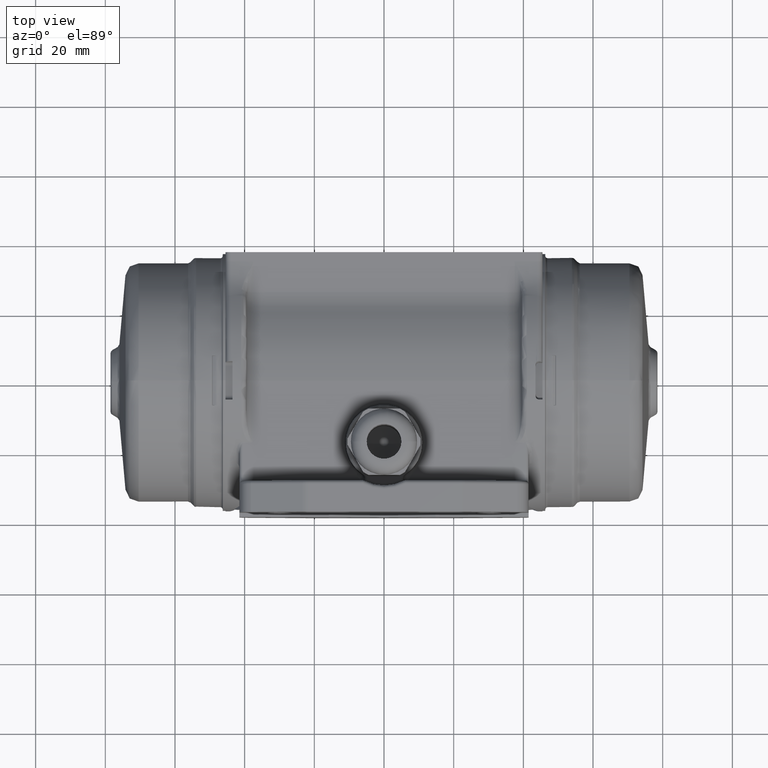
[diagram: clean part render]
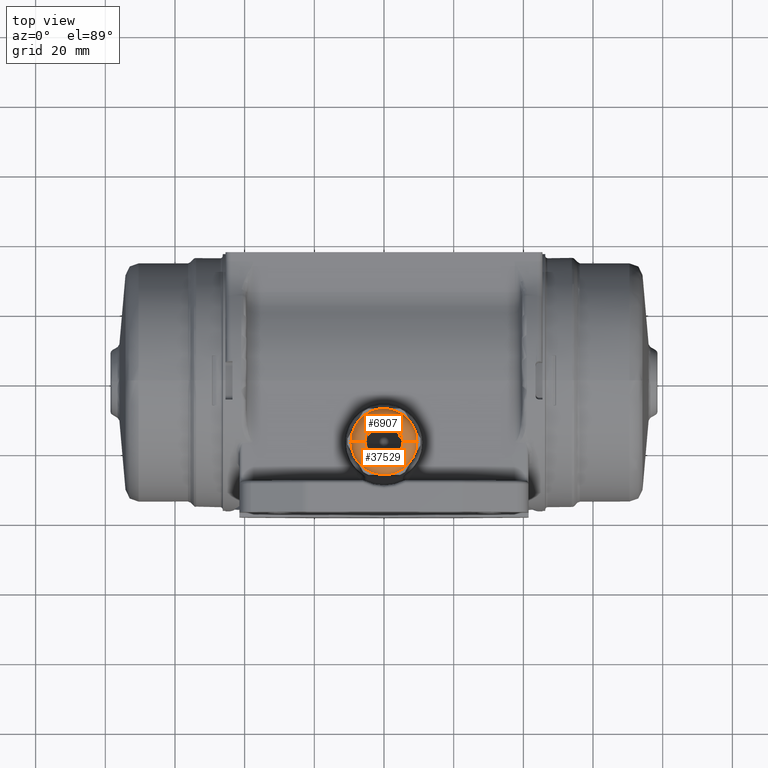
[diagram: same view with one multi-face feature highlighted, each face labeled with its STEP entity id]
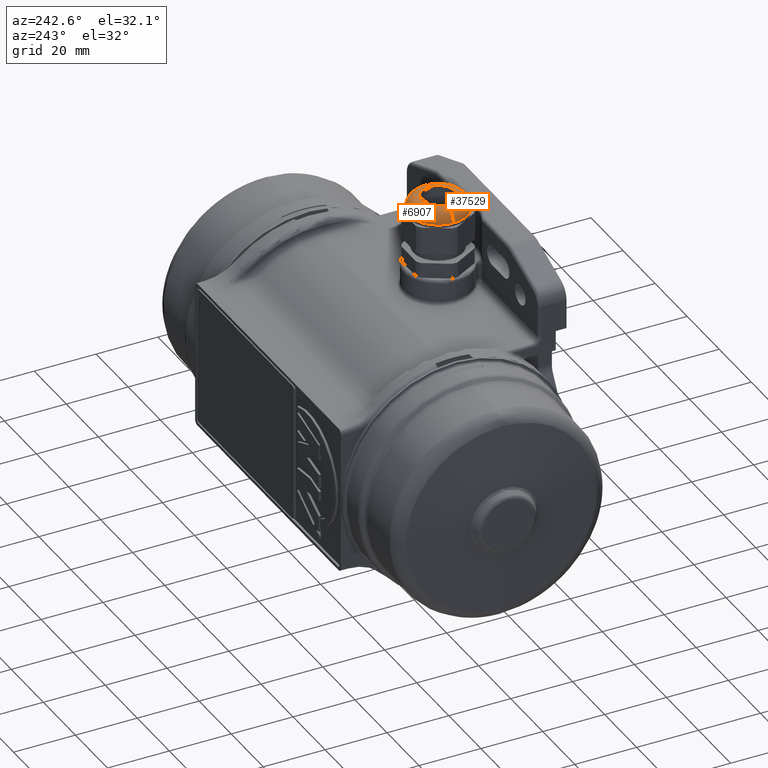
[diagram: same view with one multi-face feature highlighted, each face labeled with its STEP entity id]
A machine part, top view. The highlighted faces form ONE feature: a constant-radius fillet chain: 2 tangent blend faces with common blend radius 4 mm. The faces share edges in the B-rep.
A second angle (auxiliary view) of the same feature is appended — it is thin or edge-on in the first view.
Their STEP definitions:
[1] entity #6907 (Torus):
#6871 = VERTEX_POINT ( 'NONE', #28073 ) ;
#6880 = ORIENTED_EDGE ( 'NONE', *, *, #6901, .F. ) ;
#6884 = EDGE_LOOP ( 'NONE', ( #6893, #6897, #6880, #6918 ) ) ;
#6887 = VERTEX_POINT ( 'NONE', #28171 ) ;
#6891 = EDGE_CURVE ( 'NONE', #6887, #6919, #28269, .T. ) ;
#6893 = ORIENTED_EDGE ( 'NONE', *, *, #6913, .F. ) ;
#6897 = ORIENTED_EDGE ( 'NONE', *, *, #6891, .T. ) ;
#6901 = EDGE_CURVE ( 'NONE', #6871, #6919, #28332, .T. ) ;
#6907 = ADVANCED_FACE ( 'NONE', ( #28303 ), #28363, .T. ) ;
#6908 = VERTEX_POINT ( 'NONE', #28362 ) ;
#6913 = EDGE_CURVE ( 'NONE', #6887, #6908, #28347, .T. ) ;
#6917 = EDGE_CURVE ( 'NONE', #6908, #6871, #28353, .T. ) ;
#6918 = ORIENTED_EDGE ( 'NONE', *, *, #6917, .F. ) ;
#6919 = VERTEX_POINT ( 'NONE', #28394 ) ;
#28073 = CARTESIAN_POINT ( 'NONE',  ( 5.500000000000000000, -18.00000000000000000, 62.50000000000000000 ) ) ;
#28171 = CARTESIAN_POINT ( 'NONE',  ( -9.500000000000000000, -18.00000000000000000, 58.50000000000000000 ) ) ;
#28262 = DIRECTION ( 'NONE',  ( -1.000000000000000000, 0.0000000000000000000, 0.0000000000000000000 ) ) ;
#28264 = DIRECTION ( 'NONE',  ( 1.224646799147353200E-016, 1.000000000000000000, -0.0000000000000000000 ) ) ;
#28266 = CARTESIAN_POINT ( 'NONE',  ( -5.500000000000000000, -18.00000000000000000, 58.50000000000000000 ) ) ;
#28267 = AXIS2_PLACEMENT_3D ( 'NONE', #28266, #28264, #28262 ) ;
#28269 = CIRCLE ( 'NONE', #28267, 4.000000000000000000 ) ;
#28303 = FACE_OUTER_BOUND ( 'NONE', #6884, .T. ) ;
#28310 = DIRECTION ( 'NONE',  ( 1.000000000000000000, 0.0000000000000000000, 0.0000000000000000000 ) ) ;
#28324 = DIRECTION ( 'NONE',  ( 0.0000000000000000000, 0.0000000000000000000, 1.000000000000000000 ) ) ;
#28332 = CIRCLE ( 'NONE', #28337, 5.500000000000000000 ) ;
#28333 = CARTESIAN_POINT ( 'NONE',  ( 0.0000000000000000000, -18.00000000000000000, 62.50000000000000000 ) ) ;
#28337 = AXIS2_PLACEMENT_3D ( 'NONE', #28333, #28324, #28310 ) ;
#28342 = DIRECTION ( 'NONE',  ( 1.000000000000000000, 0.0000000000000000000, 0.0000000000000000000 ) ) ;
#28343 = DIRECTION ( 'NONE',  ( -0.0000000000000000000, -0.0000000000000000000, -1.000000000000000000 ) ) ;
#28344 = CARTESIAN_POINT ( 'NONE',  ( 0.0000000000000000000, -18.00000000000000000, 58.50000000000000000 ) ) ;
#28345 = AXIS2_PLACEMENT_3D ( 'NONE', #28344, #28343, #28342 ) ;
#28346 = AXIS2_PLACEMENT_3D ( 'NONE', #28393, #28392, #28391 ) ;
#28347 = CIRCLE ( 'NONE', #28345, 9.500000000000000000 ) ;
#28353 = CIRCLE ( 'NONE', #28346, 3.999999999999996400 ) ;
#28354 = DIRECTION ( 'NONE',  ( 1.000000000000000000, 0.0000000000000000000, 0.0000000000000000000 ) ) ;
#28355 = DIRECTION ( 'NONE',  ( 0.0000000000000000000, 0.0000000000000000000, 1.000000000000000000 ) ) ;
#28356 = CARTESIAN_POINT ( 'NONE',  ( 0.0000000000000000000, -18.00000000000000000, 58.50000000000000000 ) ) ;
#28362 = CARTESIAN_POINT ( 'NONE',  ( 9.500000000000000000, -18.00000000000000000, 58.50000000000000000 ) ) ;
#28363 = TOROIDAL_SURFACE ( 'NONE', #28364, 5.500000000000000000, 4.000000000000000000 ) ;
#28364 = AXIS2_PLACEMENT_3D ( 'NONE', #28356, #28355, #28354 ) ;
#28391 = DIRECTION ( 'NONE',  ( 0.0000000000000000000, 0.0000000000000000000, -1.000000000000000000 ) ) ;
#28392 = DIRECTION ( 'NONE',  ( 0.0000000000000000000, -1.000000000000000000, 0.0000000000000000000 ) ) ;
#28393 = CARTESIAN_POINT ( 'NONE',  ( 5.500000000000000000, -18.00000000000000000, 58.50000000000000000 ) ) ;
#28394 = CARTESIAN_POINT ( 'NONE',  ( -5.500000000000000000, -18.00000000000000000, 62.50000000000000000 ) ) ;
[2] entity #37529 (Torus):
#4773 = CARTESIAN_POINT ( 'NONE',  ( 0.0000000000000000000, -18.00000000000000000, 58.50000000000000000 ) ) ;
#4779 = AXIS2_PLACEMENT_3D ( 'NONE', #4773, #4815, #4808 ) ;
#4793 = FACE_OUTER_BOUND ( 'NONE', #37545, .T. ) ;
#4808 = DIRECTION ( 'NONE',  ( 1.000000000000000000, 0.0000000000000000000, 0.0000000000000000000 ) ) ;
#4810 = CIRCLE ( 'NONE', #4838, 5.500000000000000000 ) ;
#4815 = DIRECTION ( 'NONE',  ( 0.0000000000000000000, 0.0000000000000000000, 1.000000000000000000 ) ) ;
#4825 = TOROIDAL_SURFACE ( 'NONE', #4779, 5.500000000000000000, 4.000000000000000000 ) ;
#4835 = DIRECTION ( 'NONE',  ( 1.000000000000000000, 0.0000000000000000000, 0.0000000000000000000 ) ) ;
#4836 = DIRECTION ( 'NONE',  ( 0.0000000000000000000, 0.0000000000000000000, 1.000000000000000000 ) ) ;
#4837 = CARTESIAN_POINT ( 'NONE',  ( 0.0000000000000000000, -18.00000000000000000, 62.50000000000000000 ) ) ;
#4838 = AXIS2_PLACEMENT_3D ( 'NONE', #4837, #4836, #4835 ) ;
#6871 = VERTEX_POINT ( 'NONE', #28073 ) ;
#6887 = VERTEX_POINT ( 'NONE', #28171 ) ;
#6891 = EDGE_CURVE ( 'NONE', #6887, #6919, #28269, .T. ) ;
#6908 = VERTEX_POINT ( 'NONE', #28362 ) ;
#6917 = EDGE_CURVE ( 'NONE', #6908, #6871, #28353, .T. ) ;
#6919 = VERTEX_POINT ( 'NONE', #28394 ) ;
#27737 = EDGE_CURVE ( 'NONE', #6908, #6887, #35284, .T. ) ;
#28073 = CARTESIAN_POINT ( 'NONE',  ( 5.500000000000000000, -18.00000000000000000, 62.50000000000000000 ) ) ;
#28171 = CARTESIAN_POINT ( 'NONE',  ( -9.500000000000000000, -18.00000000000000000, 58.50000000000000000 ) ) ;
#28262 = DIRECTION ( 'NONE',  ( -1.000000000000000000, 0.0000000000000000000, 0.0000000000000000000 ) ) ;
#28264 = DIRECTION ( 'NONE',  ( 1.224646799147353200E-016, 1.000000000000000000, -0.0000000000000000000 ) ) ;
#28266 = CARTESIAN_POINT ( 'NONE',  ( -5.500000000000000000, -18.00000000000000000, 58.50000000000000000 ) ) ;
#28267 = AXIS2_PLACEMENT_3D ( 'NONE', #28266, #28264, #28262 ) ;
#28269 = CIRCLE ( 'NONE', #28267, 4.000000000000000000 ) ;
#28346 = AXIS2_PLACEMENT_3D ( 'NONE', #28393, #28392, #28391 ) ;
#28353 = CIRCLE ( 'NONE', #28346, 3.999999999999996400 ) ;
#28362 = CARTESIAN_POINT ( 'NONE',  ( 9.500000000000000000, -18.00000000000000000, 58.50000000000000000 ) ) ;
#28391 = DIRECTION ( 'NONE',  ( 0.0000000000000000000, 0.0000000000000000000, -1.000000000000000000 ) ) ;
#28392 = DIRECTION ( 'NONE',  ( 0.0000000000000000000, -1.000000000000000000, 0.0000000000000000000 ) ) ;
#28393 = CARTESIAN_POINT ( 'NONE',  ( 5.500000000000000000, -18.00000000000000000, 58.50000000000000000 ) ) ;
#28394 = CARTESIAN_POINT ( 'NONE',  ( -5.500000000000000000, -18.00000000000000000, 62.50000000000000000 ) ) ;
#35281 = DIRECTION ( 'NONE',  ( 1.000000000000000000, 0.0000000000000000000, 0.0000000000000000000 ) ) ;
#35282 = DIRECTION ( 'NONE',  ( -0.0000000000000000000, -0.0000000000000000000, -1.000000000000000000 ) ) ;
#35283 = AXIS2_PLACEMENT_3D ( 'NONE', #35287, #35282, #35281 ) ;
#35284 = CIRCLE ( 'NONE', #35283, 9.500000000000000000 ) ;
#35287 = CARTESIAN_POINT ( 'NONE',  ( 0.0000000000000000000, -18.00000000000000000, 58.50000000000000000 ) ) ;
#36809 = ORIENTED_EDGE ( 'NONE', *, *, #37541, .F. ) ;
#37527 = ORIENTED_EDGE ( 'NONE', *, *, #27737, .F. ) ;
#37529 = ADVANCED_FACE ( 'NONE', ( #4793 ), #4825, .T. ) ;
#37531 = ORIENTED_EDGE ( 'NONE', *, *, #6891, .F. ) ;
#37541 = EDGE_CURVE ( 'NONE', #6919, #6871, #4810, .T. ) ;
#37542 = ORIENTED_EDGE ( 'NONE', *, *, #6917, .T. ) ;
#37545 = EDGE_LOOP ( 'NONE', ( #37531, #37527, #37542, #36809 ) ) ;